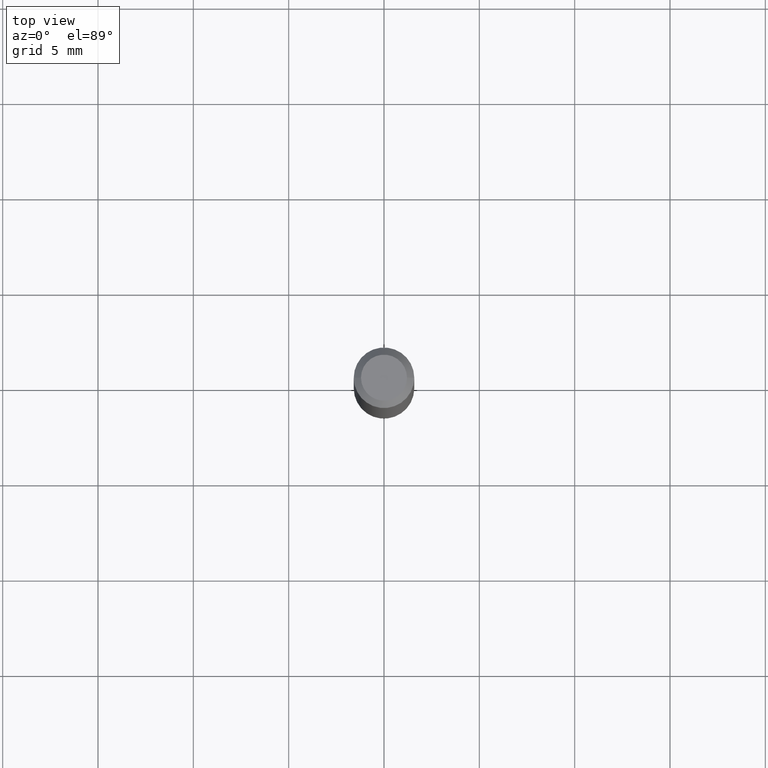
[diagram: clean part render]
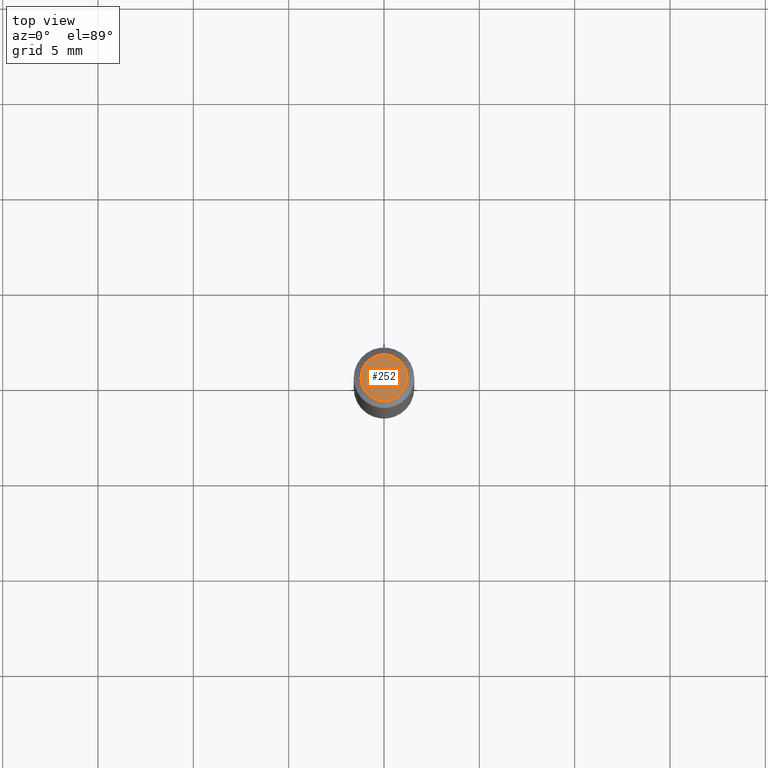
[diagram: same view with one face highlighted and labeled with its STEP entity id]
A machine part, top view. The second image highlights one B-rep face of the part: STEP entity #252.
In plain terms, the highlighted planar face has unit normal (0, -0, -1).
Its self-contained STEP definition (entity closure, byte-faithful):
#1 = AXIS2_PLACEMENT_3D ( 'NONE', #270, #83, #49 ) ;
#21 = FACE_OUTER_BOUND ( 'NONE', #196, .T. ) ;
#49 = DIRECTION ( 'NONE',  ( 1.000000000000000000, -6.982962677686267499E-15, 4.852736867747366768E-29 ) ) ;
#63 = DIRECTION ( 'NONE',  ( 2.438088387897960049E-29, -3.491481338843145188E-15, -1.000000000000000000 ) ) ;
#83 = DIRECTION ( 'NONE',  ( -2.445468806185136597E-29, 3.491481338843145583E-15, 1.000000000000000000 ) ) ;
#109 = CARTESIAN_POINT ( 'NONE',  ( -0.04749999999999999362, 3.578768372314205575E-16, -2.863788329398987133E-16 ) ) ;
#113 = AXIS2_PLACEMENT_3D ( 'NONE', #140, #417, #302 ) ;
#137 = EDGE_CURVE ( 'NONE', #371, #389, #381, .T. ) ;
#140 = CARTESIAN_POINT ( 'NONE',  ( 7.003305027062207074E-45, -9.998863510493265527E-31, -2.863788329398962481E-16 ) ) ;
#196 = EDGE_LOOP ( 'NONE', ( #354, #321 ) ) ;
#252 = ADVANCED_FACE ( 'NONE', ( #21 ), #379, .F. ) ;
#254 = CIRCLE ( 'NONE', #113, 0.04749999999999999362 ) ;
#270 = CARTESIAN_POINT ( 'NONE',  ( 7.003305027062207074E-45, -9.998863510493265527E-31, -2.863788329398962481E-16 ) ) ;
#290 = CARTESIAN_POINT ( 'NONE',  ( 3.316907271900976096E-16, 0.04749999999999999362, -3.090347800649974958E-16 ) ) ;
#302 = DIRECTION ( 'NONE',  ( 1.000000000000000000, -6.982962677686267499E-15, 4.852736867747366768E-29 ) ) ;
#321 = ORIENTED_EDGE ( 'NONE', *, *, #137, .T. ) ;
#324 = CARTESIAN_POINT ( 'NONE',  ( 0.04749999999999999362, -4.035134999187584047E-16, -2.863788329398937336E-16 ) ) ;
#341 = EDGE_CURVE ( 'NONE', #389, #371, #254, .T. ) ;
#345 = DIRECTION ( 'NONE',  ( -1.000000000000000000, 6.982962677686265922E-15, -4.876176775795935793E-29 ) ) ;
#354 = ORIENTED_EDGE ( 'NONE', *, *, #341, .T. ) ;
#363 = AXIS2_PLACEMENT_3D ( 'NONE', #290, #63, #345 ) ;
#371 = VERTEX_POINT ( 'NONE', #324 ) ;
#379 = PLANE ( 'NONE',  #363 ) ;
#381 = CIRCLE ( 'NONE', #1, 0.04749999999999999362 ) ;
#389 = VERTEX_POINT ( 'NONE', #109 ) ;
#417 = DIRECTION ( 'NONE',  ( -2.445468806185136597E-29, 3.491481338843145583E-15, 1.000000000000000000 ) ) ;